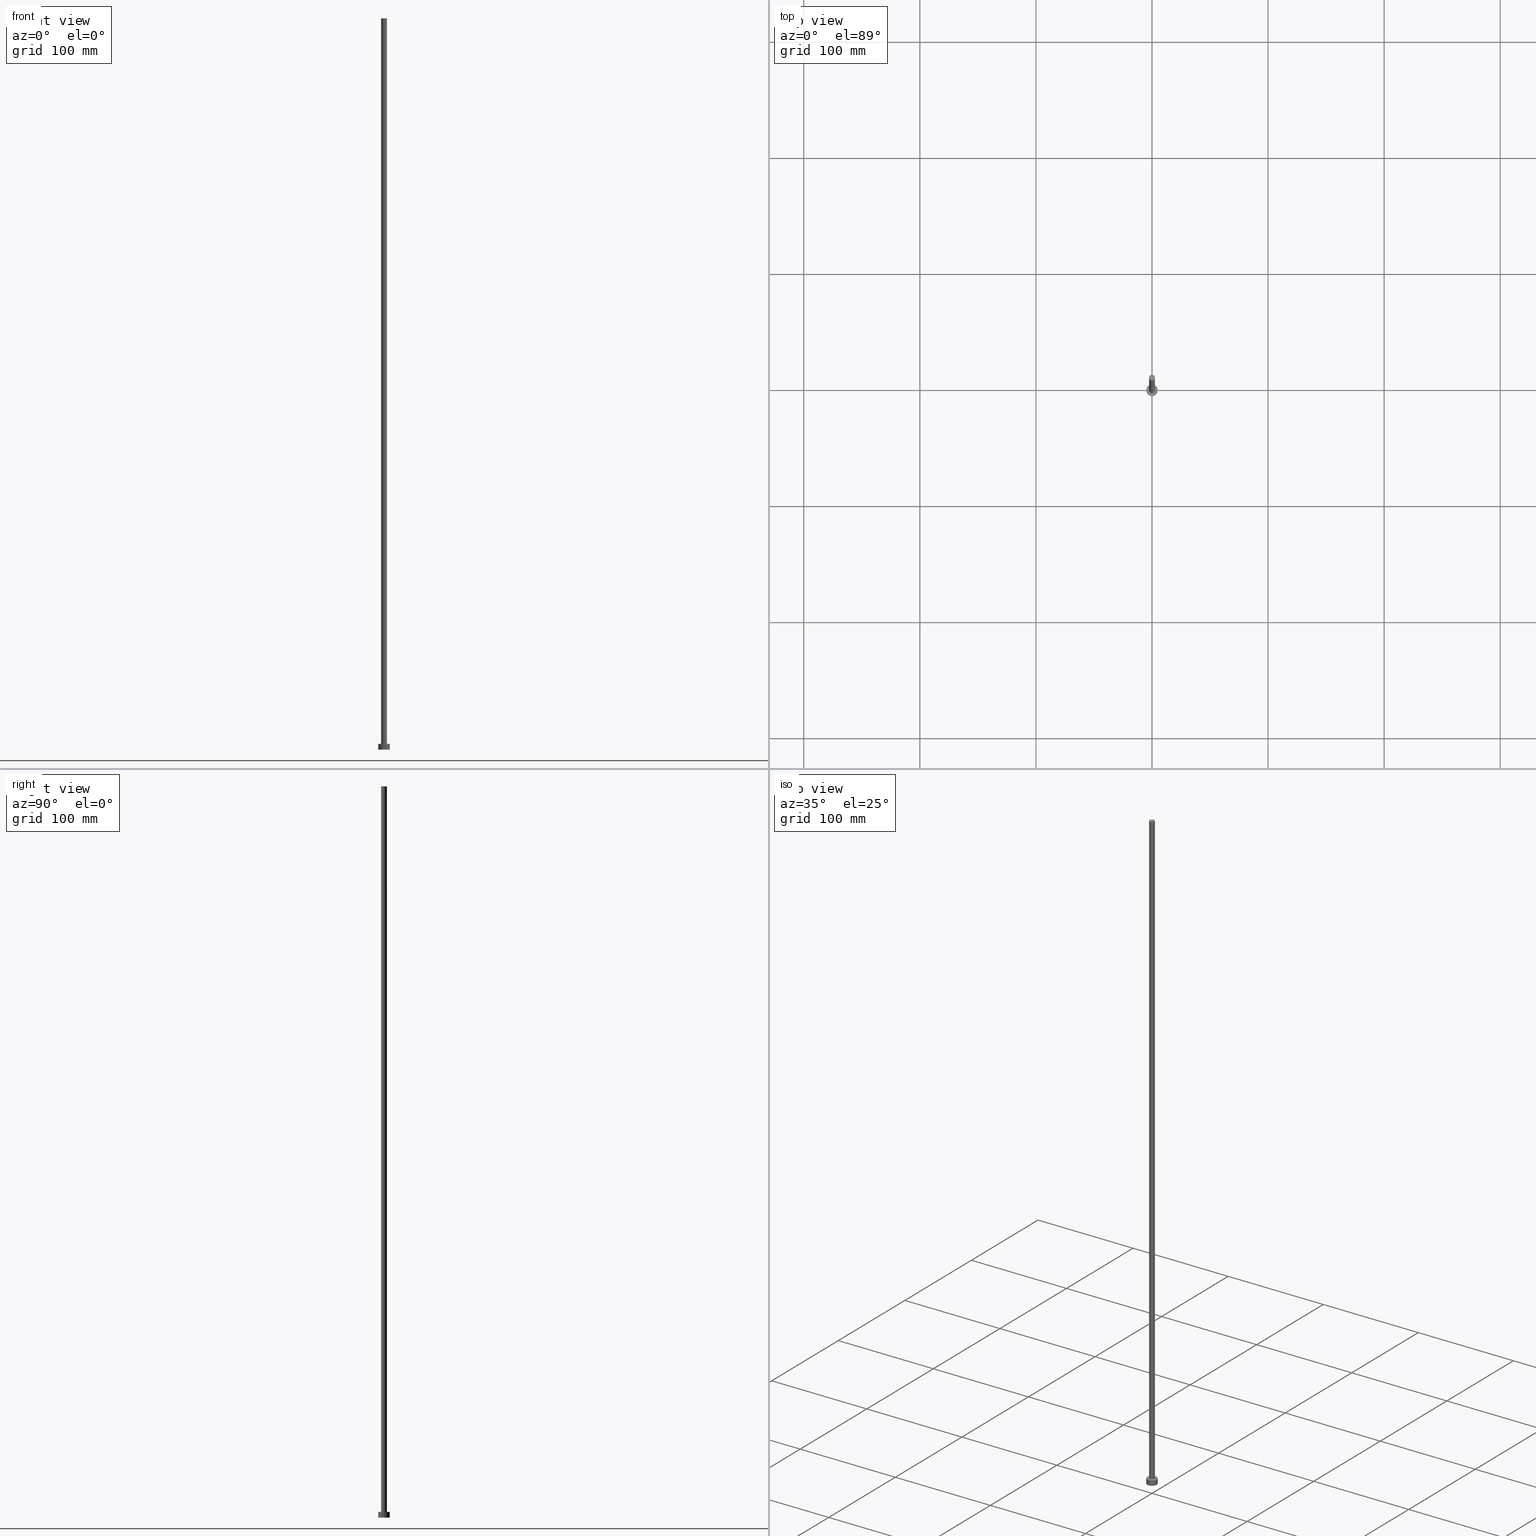
[diagram: canonical four-view strip — front | top / right | iso, engineering-drawing reading convention]
A machine part, canonical four-view strip (front | top / right | iso — engineering-drawing reading convention). The complete STEP part file that produces these views, byte-faithful:
ISO-10303-21;
HEADER;
FILE_DESCRIPTION (( 'STEP AP203' ),
    '1' );
FILE_NAME ('eec4.STEP',
    '2023-02-13T16:05:30',
    ( '' ),
    ( '' ),
    'SwSTEP 2.0',
    'SolidWorks 2019',
    '' );
FILE_SCHEMA (( 'CONFIG_CONTROL_DESIGN' ));
ENDSEC;

DATA;
#1 = ADVANCED_FACE ( 'NONE', ( #31 ), #133, .T. ) ;
#2 = PERSON_AND_ORGANIZATION ( #215, #177 ) ;
#3 = PRODUCT_DEFINITION_FORMATION_WITH_SPECIFIED_SOURCE ( 'LIBOVOLN�', '', #81, .NOT_KNOWN. ) ;
#4 = PERSON_AND_ORGANIZATION ( #215, #177 ) ;
#5 = AXIS2_PLACEMENT_3D ( 'NONE', #92, #155, #217 ) ;
#6 = CALENDAR_DATE ( 2023, 13, 2 ) ;
#7 = PERSON_AND_ORGANIZATION_ROLE ( 'creator' ) ;
#8 = VECTOR ( 'NONE', #57, 1000.000000000000000 ) ;
#9 = ORIENTED_EDGE ( 'NONE', *, *, #67, .T. ) ;
#10 = PLANE ( 'NONE',  #33 ) ;
#11 = EDGE_CURVE ( 'NONE', #164, #209, #168, .T. ) ;
#12 = APPROVAL_STATUS ( 'not_yet_approved' ) ;
#13 = CARTESIAN_POINT ( 'NONE',  ( 2.500000000000000000, 3.061616997868383141E-16, 630.0000000000000000 ) ) ;
#14 = ORIENTED_EDGE ( 'NONE', *, *, #91, .T. ) ;
#15 = CC_DESIGN_PERSON_AND_ORGANIZATION_ASSIGNMENT ( #37, #7, ( #3 ) ) ;
#16 = PERSON_AND_ORGANIZATION ( #215, #177 ) ;
#17 = CARTESIAN_POINT ( 'NONE',  ( 0.000000000000000000, 0.000000000000000000, 5.000000000000000000 ) ) ;
#18 = ORIENTED_EDGE ( 'NONE', *, *, #59, .F. ) ;
#19 = DIRECTION ( 'NONE',  ( 0.000000000000000000, 0.000000000000000000, 1.000000000000000000 ) ) ;
#20 = ORIENTED_EDGE ( 'NONE', *, *, #11, .T. ) ;
#21 = CC_DESIGN_APPROVAL ( #53, ( #175 ) ) ;
#22 = DATE_AND_TIME ( #172, #94 ) ;
#23 = DIRECTION ( 'NONE',  ( 1.000000000000000000, 0.000000000000000000, 0.000000000000000000 ) ) ;
#24 = SECURITY_CLASSIFICATION ( '', '', #30 ) ;
#25 = CARTESIAN_POINT ( 'NONE',  ( -2.500000000000000000, 0.000000000000000000, 630.0000000000000000 ) ) ;
#26 = EDGE_CURVE ( 'NONE', #85, #88, #42, .T. ) ;
#27 = CC_DESIGN_APPROVAL ( #41, ( #24 ) ) ;
#28 = CC_DESIGN_PERSON_AND_ORGANIZATION_ASSIGNMENT ( #4, #29, ( #81 ) ) ;
#29 = PERSON_AND_ORGANIZATION_ROLE ( 'design_owner' ) ;
#30 = SECURITY_CLASSIFICATION_LEVEL ( 'unclassified' ) ;
#31 = FACE_OUTER_BOUND ( 'NONE', #140, .T. ) ;
#32 = DIRECTION ( 'NONE',  ( 0.000000000000000000, 0.000000000000000000, 1.000000000000000000 ) ) ;
#33 = AXIS2_PLACEMENT_3D ( 'NONE', #17, #135, #63 ) ;
#34 = EDGE_LOOP ( 'NONE', ( #72, #127, #161, #214 ) ) ;
#35 = AXIS2_PLACEMENT_3D ( 'NONE', #174, #236, #220 ) ;
#36 = ADVANCED_FACE ( 'NONE', ( #50, #113 ), #10, .T. ) ;
#37 = PERSON_AND_ORGANIZATION ( #215, #177 ) ;
#38 = ORIENTED_EDGE ( 'NONE', *, *, #67, .F. ) ;
#39 = EDGE_LOOP ( 'NONE', ( #114, #227, #244, #226 ) ) ;
#40 =( NAMED_UNIT ( * ) SI_UNIT ( $, .STERADIAN. ) SOLID_ANGLE_UNIT ( ) );
#41 = APPROVAL ( #95, 'NEUR�EN�' ) ;
#42 = CIRCLE ( 'NONE', #180, 2.500000000000000000 ) ;
#43 = CYLINDRICAL_SURFACE ( 'NONE', #254, 2.500000000000000000 ) ;
#44 = LINE ( 'NONE', #154, #97 ) ;
#45 = PRODUCT_RELATED_PRODUCT_CATEGORY ( 'detail', '', ( #81 ) ) ;
#46 = CARTESIAN_POINT ( 'NONE',  ( 0.000000000000000000, 0.000000000000000000, 0.000000000000000000 ) ) ;
#47 = EDGE_CURVE ( 'NONE', #209, #164, #70, .T. ) ;
#48 = DIRECTION ( 'NONE',  ( 1.000000000000000000, 0.000000000000000000, 0.000000000000000000 ) ) ;
#49 = PERSON_AND_ORGANIZATION ( #215, #177 ) ;
#50 = FACE_BOUND ( 'NONE', #163, .T. ) ;
#51 = VERTEX_POINT ( 'NONE', #13 ) ;
#52 = LINE ( 'NONE', #79, #104 ) ;
#53 = APPROVAL ( #145, 'NEUR�EN�' ) ;
#54 = DIRECTION ( 'NONE',  ( -1.000000000000000000, 0.000000000000000000, 0.000000000000000000 ) ) ;
#55 = EDGE_CURVE ( 'NONE', #153, #183, #204, .T. ) ;
#56 = APPROVAL_ROLE ( '' ) ;
#57 = DIRECTION ( 'NONE',  ( -0.000000000000000000, -0.000000000000000000, -1.000000000000000000 ) ) ;
#58 = AXIS2_PLACEMENT_3D ( 'NONE', #74, #152, #23 ) ;
#59 = EDGE_CURVE ( 'NONE', #153, #209, #208, .T. ) ;
#60 = APPROVAL_DATE_TIME ( #238, #53 ) ;
#61 = APPROVAL_PERSON_ORGANIZATION ( #2, #53, #240 ) ;
#62 = ADVANCED_FACE ( 'NONE', ( #86 ), #71, .F. ) ;
#63 = DIRECTION ( 'NONE',  ( 1.000000000000000000, 0.000000000000000000, -0.000000000000000000 ) ) ;
#64 = COORDINATED_UNIVERSAL_TIME_OFFSET ( 1, 0, .AHEAD. ) ;
#65 = APPROVAL_PERSON_ORGANIZATION ( #107, #41, #56 ) ;
#66 = ORIENTED_EDGE ( 'NONE', *, *, #157, .T. ) ;
#67 = EDGE_CURVE ( 'NONE', #203, #51, #216, .T. ) ;
#68 = DIRECTION ( 'NONE',  ( 1.000000000000000000, 0.000000000000000000, 0.000000000000000000 ) ) ;
#69 = CARTESIAN_POINT ( 'NONE',  ( 5.000000000000000000, 6.123233995736766282E-16, 5.000000000000000000 ) ) ;
#70 = CIRCLE ( 'NONE', #84, 5.000000000000000000 ) ;
#71 = PLANE ( 'NONE',  #198 ) ;
#72 = ORIENTED_EDGE ( 'NONE', *, *, #197, .F. ) ;
#73 = CARTESIAN_POINT ( 'NONE',  ( -2.500000000000000000, 0.000000000000000000, 5.000000000000000000 ) ) ;
#74 = CARTESIAN_POINT ( 'NONE',  ( 0.000000000000000000, 0.000000000000000000, 5.000000000000000000 ) ) ;
#75 = CIRCLE ( 'NONE', #5, 2.500000000000000000 ) ;
#76 = CARTESIAN_POINT ( 'NONE',  ( -2.500000000000000000, 0.000000000000000000, 630.0000000000000000 ) ) ;
#77 = DIRECTION ( 'NONE',  ( -1.000000000000000000, 0.000000000000000000, 0.000000000000000000 ) ) ;
#78 = COORDINATED_UNIVERSAL_TIME_OFFSET ( 1, 0, .AHEAD. ) ;
#79 = CARTESIAN_POINT ( 'NONE',  ( 2.500000000000000000, 3.061616997868383141E-16, 630.0000000000000000 ) ) ;
#80 = COORDINATED_UNIVERSAL_TIME_OFFSET ( 1, 0, .AHEAD. ) ;
#81 = PRODUCT ( 'eec4', 'eec4', '', ( #101 ) ) ;
#82 = DATE_AND_TIME ( #6, #100 ) ;
#83 = APPROVAL_ROLE ( '' ) ;
#84 = AXIS2_PLACEMENT_3D ( 'NONE', #46, #19, #68 ) ;
#85 = VERTEX_POINT ( 'NONE', #233 ) ;
#86 = FACE_OUTER_BOUND ( 'NONE', #111, .T. ) ;
#87 = CIRCLE ( 'NONE', #221, 2.500000000000000000 ) ;
#88 = VERTEX_POINT ( 'NONE', #73 ) ;
#89 = DIRECTION ( 'NONE',  ( -0.000000000000000000, -0.000000000000000000, -1.000000000000000000 ) ) ;
#90 = ADVANCED_BREP_SHAPE_REPRESENTATION ( 'eec4', ( #124, #35 ), #199 ) ;
#91 = EDGE_CURVE ( 'NONE', #203, #88, #156, .T. ) ;
#92 = CARTESIAN_POINT ( 'NONE',  ( 0.000000000000000000, 0.000000000000000000, 5.000000000000000000 ) ) ;
#93 = DIRECTION ( 'NONE',  ( -0.000000000000000000, -0.000000000000000000, -1.000000000000000000 ) ) ;
#94 = LOCAL_TIME ( 17, 5, 30.00000000000000000, #78 ) ;
#95 = APPROVAL_STATUS ( 'not_yet_approved' ) ;
#96 = CARTESIAN_POINT ( 'NONE',  ( 5.000000000000000000, 6.123233995736766282E-16, 5.000000000000000000 ) ) ;
#97 = VECTOR ( 'NONE', #93, 1000.000000000000000 ) ;
#98 = CC_DESIGN_DATE_AND_TIME_ASSIGNMENT ( #82, #241, ( #24 ) ) ;
#99 = APPLICATION_PROTOCOL_DEFINITION ( 'international standard', 'config_control_design', 1994, #192 ) ;
#100 = LOCAL_TIME ( 17, 5, 30.00000000000000000, #178 ) ;
#101 = MECHANICAL_CONTEXT ( 'NONE', #218, 'mechanical' ) ;
#102 = PRODUCT_DEFINITION_SHAPE ( 'NONE', 'NONE',  #175 ) ;
#103 = APPROVAL ( #12, 'NEUR�EN�' ) ;
#104 = VECTOR ( 'NONE', #169, 1000.000000000000000 ) ;
#105 = CALENDAR_DATE ( 2023, 13, 2 ) ;
#106 = ADVANCED_FACE ( 'NONE', ( #141 ), #252, .T. ) ;
#107 = PERSON_AND_ORGANIZATION ( #215, #177 ) ;
#108 = CARTESIAN_POINT ( 'NONE',  ( 0.000000000000000000, 0.000000000000000000, 5.000000000000000000 ) ) ;
#109 = DIRECTION ( 'NONE',  ( 1.000000000000000000, 0.000000000000000000, -0.000000000000000000 ) ) ;
#110 = CARTESIAN_POINT ( 'NONE',  ( 0.000000000000000000, 0.000000000000000000, 630.0000000000000000 ) ) ;
#111 = EDGE_LOOP ( 'NONE', ( #179, #149 ) ) ;
#112 = PERSON_AND_ORGANIZATION ( #215, #177 ) ;
#113 = FACE_OUTER_BOUND ( 'NONE', #162, .T. ) ;
#114 = ORIENTED_EDGE ( 'NONE', *, *, #55, .F. ) ;
#115 = EDGE_LOOP ( 'NONE', ( #18, #181, #185, #20 ) ) ;
#116 = DIRECTION ( 'NONE',  ( -0.000000000000000000, -0.000000000000000000, -1.000000000000000000 ) ) ;
#117 = AXIS2_PLACEMENT_3D ( 'NONE', #108, #225, #248 ) ;
#118 = CYLINDRICAL_SURFACE ( 'NONE', #147, 2.500000000000000000 ) ;
#119 = FACE_OUTER_BOUND ( 'NONE', #115, .T. ) ;
#120 = CC_DESIGN_PERSON_AND_ORGANIZATION_ASSIGNMENT ( #112, #184, ( #3 ) ) ;
#121 = AXIS2_PLACEMENT_3D ( 'NONE', #160, #243, #251 ) ;
#122 = EDGE_CURVE ( 'NONE', #88, #85, #75, .T. ) ;
#123 = CC_DESIGN_APPROVAL ( #103, ( #3 ) ) ;
#124 = MANIFOLD_SOLID_BREP ( 'P�idat vysunut�m3', #228 ) ;
#125 = EDGE_CURVE ( 'NONE', #51, #85, #52, .T. ) ;
#126 = PERSON_AND_ORGANIZATION_ROLE ( 'creator' ) ;
#127 = ORIENTED_EDGE ( 'NONE', *, *, #125, .T. ) ;
#128 = DIRECTION ( 'NONE',  ( 0.000000000000000000, 0.000000000000000000, 1.000000000000000000 ) ) ;
#129 = CALENDAR_DATE ( 2023, 13, 2 ) ;
#130 = DIRECTION ( 'NONE',  ( 1.000000000000000000, 0.000000000000000000, 0.000000000000000000 ) ) ;
#131 = DESIGN_CONTEXT ( 'detailed design', #192, 'design' ) ;
#132 = DATE_AND_TIME ( #105, #194 ) ;
#133 = PLANE ( 'NONE',  #176 ) ;
#134 = ORIENTED_EDGE ( 'NONE', *, *, #125, .F. ) ;
#135 = DIRECTION ( 'NONE',  ( 0.000000000000000000, 0.000000000000000000, 1.000000000000000000 ) ) ;
#136 = DIRECTION ( 'NONE',  ( -0.000000000000000000, -0.000000000000000000, -1.000000000000000000 ) ) ;
#137 = CARTESIAN_POINT ( 'NONE',  ( 0.000000000000000000, 0.000000000000000000, 630.0000000000000000 ) ) ;
#138 = LOCAL_TIME ( 17, 5, 30.00000000000000000, #64 ) ;
#139 = CYLINDRICAL_SURFACE ( 'NONE', #235, 5.000000000000000000 ) ;
#140 = EDGE_LOOP ( 'NONE', ( #9, #148 ) ) ;
#141 = FACE_OUTER_BOUND ( 'NONE', #39, .T. ) ;
#142 = ORIENTED_EDGE ( 'NONE', *, *, #55, .T. ) ;
#143 =( NAMED_UNIT ( * ) PLANE_ANGLE_UNIT ( ) SI_UNIT ( $, .RADIAN. ) );
#144 = AXIS2_PLACEMENT_3D ( 'NONE', #219, #89, #234 ) ;
#145 = APPROVAL_STATUS ( 'not_yet_approved' ) ;
#146 = DIRECTION ( 'NONE',  ( 0.000000000000000000, 0.000000000000000000, 1.000000000000000000 ) ) ;
#147 = AXIS2_PLACEMENT_3D ( 'NONE', #167, #136, #193 ) ;
#148 = ORIENTED_EDGE ( 'NONE', *, *, #197, .T. ) ;
#149 = ORIENTED_EDGE ( 'NONE', *, *, #47, .F. ) ;
#150 = UNCERTAINTY_MEASURE_WITH_UNIT (LENGTH_MEASURE( 1.000000000000000082E-05 ), #210, 'distance_accuracy_value', 'NONE');
#151 = DIRECTION ( 'NONE',  ( 1.000000000000000000, 0.000000000000000000, -0.000000000000000000 ) ) ;
#152 = DIRECTION ( 'NONE',  ( 0.000000000000000000, 0.000000000000000000, 1.000000000000000000 ) ) ;
#153 = VERTEX_POINT ( 'NONE', #96 ) ;
#154 = CARTESIAN_POINT ( 'NONE',  ( -5.000000000000000000, 0.000000000000000000, 5.000000000000000000 ) ) ;
#155 = DIRECTION ( 'NONE',  ( 0.000000000000000000, 0.000000000000000000, 1.000000000000000000 ) ) ;
#156 = LINE ( 'NONE', #76, #8 ) ;
#157 = EDGE_CURVE ( 'NONE', #183, #153, #165, .T. ) ;
#158 = CC_DESIGN_DATE_AND_TIME_ASSIGNMENT ( #224, #182, ( #175 ) ) ;
#159 = DIRECTION ( 'NONE',  ( 0.000000000000000000, 0.000000000000000000, 1.000000000000000000 ) ) ;
#160 = CARTESIAN_POINT ( 'NONE',  ( 0.000000000000000000, 0.000000000000000000, 630.0000000000000000 ) ) ;
#161 = ORIENTED_EDGE ( 'NONE', *, *, #26, .T. ) ;
#162 = EDGE_LOOP ( 'NONE', ( #66, #142 ) ) ;
#163 = EDGE_LOOP ( 'NONE', ( #249, #231 ) ) ;
#164 = VERTEX_POINT ( 'NONE', #255 ) ;
#165 = CIRCLE ( 'NONE', #58, 5.000000000000000000 ) ;
#166 = ADVANCED_FACE ( 'NONE', ( #195 ), #43, .T. ) ;
#167 = CARTESIAN_POINT ( 'NONE',  ( 0.000000000000000000, 0.000000000000000000, 630.0000000000000000 ) ) ;
#168 = CIRCLE ( 'NONE', #186, 5.000000000000000000 ) ;
#169 = DIRECTION ( 'NONE',  ( -0.000000000000000000, -0.000000000000000000, -1.000000000000000000 ) ) ;
#170 = DIRECTION ( 'NONE',  ( 1.000000000000000000, 0.000000000000000000, 0.000000000000000000 ) ) ;
#171 = CC_DESIGN_PERSON_AND_ORGANIZATION_ASSIGNMENT ( #222, #126, ( #175 ) ) ;
#172 = CALENDAR_DATE ( 2023, 13, 2 ) ;
#173 = CARTESIAN_POINT ( 'NONE',  ( 5.000000000000000000, 6.123233995736766282E-16, 0.000000000000000000 ) ) ;
#174 = CARTESIAN_POINT ( 'NONE',  ( 0.000000000000000000, 0.000000000000000000, 0.000000000000000000 ) ) ;
#175 = PRODUCT_DEFINITION ( 'NEZN�M�', '', #3, #131 ) ;
#176 = AXIS2_PLACEMENT_3D ( 'NONE', #110, #32, #109 ) ;
#177 = ORGANIZATION ( 'NEUR�EN�', 'NEUR�EN�', '' ) ;
#178 = COORDINATED_UNIVERSAL_TIME_OFFSET ( 1, 0, .AHEAD. ) ;
#179 = ORIENTED_EDGE ( 'NONE', *, *, #11, .F. ) ;
#180 = AXIS2_PLACEMENT_3D ( 'NONE', #229, #159, #130 ) ;
#181 = ORIENTED_EDGE ( 'NONE', *, *, #157, .F. ) ;
#182 = DATE_TIME_ROLE ( 'creation_date' ) ;
#183 = VERTEX_POINT ( 'NONE', #230 ) ;
#184 = PERSON_AND_ORGANIZATION_ROLE ( 'design_supplier' ) ;
#185 = ORIENTED_EDGE ( 'NONE', *, *, #223, .T. ) ;
#186 = AXIS2_PLACEMENT_3D ( 'NONE', #207, #128, #48 ) ;
#187 = SHAPE_DEFINITION_REPRESENTATION ( #102, #90 ) ;
#188 = DIRECTION ( 'NONE',  ( 0.000000000000000000, 0.000000000000000000, 1.000000000000000000 ) ) ;
#189 = APPLICATION_PROTOCOL_DEFINITION ( 'international standard', 'config_control_design', 1994, #218 ) ;
#190 = APPROVAL_DATE_TIME ( #22, #41 ) ;
#191 = CARTESIAN_POINT ( 'NONE',  ( 0.000000000000000000, 0.000000000000000000, 630.0000000000000000 ) ) ;
#192 = APPLICATION_CONTEXT ( 'configuration controlled 3d designs of mechanical parts and assemblies' ) ;
#193 = DIRECTION ( 'NONE',  ( -1.000000000000000000, 0.000000000000000000, 0.000000000000000000 ) ) ;
#194 = LOCAL_TIME ( 17, 5, 30.00000000000000000, #247 ) ;
#195 = FACE_OUTER_BOUND ( 'NONE', #34, .T. ) ;
#196 = CC_DESIGN_PERSON_AND_ORGANIZATION_ASSIGNMENT ( #16, #250, ( #24 ) ) ;
#197 = EDGE_CURVE ( 'NONE', #51, #203, #87, .T. ) ;
#198 = AXIS2_PLACEMENT_3D ( 'NONE', #201, #146, #151 ) ;
#199 =( GEOMETRIC_REPRESENTATION_CONTEXT ( 3 ) GLOBAL_UNCERTAINTY_ASSIGNED_CONTEXT ( ( #150 ) ) GLOBAL_UNIT_ASSIGNED_CONTEXT ( ( #210, #143, #40 ) ) REPRESENTATION_CONTEXT ( 'NONE', 'WORKASPACE' ) );
#200 = ADVANCED_FACE ( 'NONE', ( #119 ), #139, .T. ) ;
#201 = CARTESIAN_POINT ( 'NONE',  ( 0.000000000000000000, 0.000000000000000000, 0.000000000000000000 ) ) ;
#202 = ADVANCED_FACE ( 'NONE', ( #212 ), #118, .T. ) ;
#203 = VERTEX_POINT ( 'NONE', #25 ) ;
#204 = CIRCLE ( 'NONE', #117, 5.000000000000000000 ) ;
#205 = LOCAL_TIME ( 17, 5, 30.00000000000000000, #80 ) ;
#206 = APPROVAL_DATE_TIME ( #132, #103 ) ;
#207 = CARTESIAN_POINT ( 'NONE',  ( 0.000000000000000000, 0.000000000000000000, 0.000000000000000000 ) ) ;
#208 = LINE ( 'NONE', #69, #253 ) ;
#209 = VERTEX_POINT ( 'NONE', #173 ) ;
#210 =( LENGTH_UNIT ( ) NAMED_UNIT ( * ) SI_UNIT ( .MILLI., .METRE. ) );
#211 = APPROVAL_PERSON_ORGANIZATION ( #49, #103, #83 ) ;
#212 = FACE_OUTER_BOUND ( 'NONE', #246, .T. ) ;
#213 = CARTESIAN_POINT ( 'NONE',  ( 0.000000000000000000, 0.000000000000000000, 5.000000000000000000 ) ) ;
#214 = ORIENTED_EDGE ( 'NONE', *, *, #91, .F. ) ;
#215 = PERSON ( 'NEUR�EN�', 'NEUR�EN�', 'NEUR�EN�', ('NEUR�EN�'), ('NEUR�EN�'), ('NEUR�EN�') ) ;
#216 = CIRCLE ( 'NONE', #121, 2.500000000000000000 ) ;
#217 = DIRECTION ( 'NONE',  ( 1.000000000000000000, 0.000000000000000000, 0.000000000000000000 ) ) ;
#218 = APPLICATION_CONTEXT ( 'configuration controlled 3d designs of mechanical parts and assemblies' ) ;
#219 = CARTESIAN_POINT ( 'NONE',  ( 0.000000000000000000, 0.000000000000000000, 5.000000000000000000 ) ) ;
#220 = DIRECTION ( 'NONE',  ( 1.000000000000000000, 0.000000000000000000, 0.000000000000000000 ) ) ;
#221 = AXIS2_PLACEMENT_3D ( 'NONE', #191, #188, #170 ) ;
#222 = PERSON_AND_ORGANIZATION ( #215, #177 ) ;
#223 = EDGE_CURVE ( 'NONE', #183, #164, #44, .T. ) ;
#224 = DATE_AND_TIME ( #129, #138 ) ;
#225 = DIRECTION ( 'NONE',  ( 0.000000000000000000, 0.000000000000000000, 1.000000000000000000 ) ) ;
#226 = ORIENTED_EDGE ( 'NONE', *, *, #223, .F. ) ;
#227 = ORIENTED_EDGE ( 'NONE', *, *, #59, .T. ) ;
#228 = CLOSED_SHELL ( 'NONE', ( #166, #106, #200, #36, #62, #202, #1 ) ) ;
#229 = CARTESIAN_POINT ( 'NONE',  ( 0.000000000000000000, 0.000000000000000000, 5.000000000000000000 ) ) ;
#230 = CARTESIAN_POINT ( 'NONE',  ( -5.000000000000000000, 0.000000000000000000, 5.000000000000000000 ) ) ;
#231 = ORIENTED_EDGE ( 'NONE', *, *, #26, .F. ) ;
#232 = DIRECTION ( 'NONE',  ( -0.000000000000000000, -0.000000000000000000, -1.000000000000000000 ) ) ;
#233 = CARTESIAN_POINT ( 'NONE',  ( 2.500000000000000000, 3.061616997868383141E-16, 5.000000000000000000 ) ) ;
#234 = DIRECTION ( 'NONE',  ( -1.000000000000000000, 0.000000000000000000, 0.000000000000000000 ) ) ;
#235 = AXIS2_PLACEMENT_3D ( 'NONE', #213, #116, #77 ) ;
#236 = DIRECTION ( 'NONE',  ( 0.000000000000000000, 0.000000000000000000, 1.000000000000000000 ) ) ;
#237 = CALENDAR_DATE ( 2023, 13, 2 ) ;
#238 = DATE_AND_TIME ( #237, #205 ) ;
#239 = CC_DESIGN_SECURITY_CLASSIFICATION ( #24, ( #3 ) ) ;
#240 = APPROVAL_ROLE ( '' ) ;
#241 = DATE_TIME_ROLE ( 'classification_date' ) ;
#242 = DIRECTION ( 'NONE',  ( -0.000000000000000000, -0.000000000000000000, -1.000000000000000000 ) ) ;
#243 = DIRECTION ( 'NONE',  ( 0.000000000000000000, 0.000000000000000000, 1.000000000000000000 ) ) ;
#244 = ORIENTED_EDGE ( 'NONE', *, *, #47, .T. ) ;
#245 = ORIENTED_EDGE ( 'NONE', *, *, #122, .T. ) ;
#246 = EDGE_LOOP ( 'NONE', ( #134, #38, #14, #245 ) ) ;
#247 = COORDINATED_UNIVERSAL_TIME_OFFSET ( 1, 0, .AHEAD. ) ;
#248 = DIRECTION ( 'NONE',  ( 1.000000000000000000, 0.000000000000000000, 0.000000000000000000 ) ) ;
#249 = ORIENTED_EDGE ( 'NONE', *, *, #122, .F. ) ;
#250 = PERSON_AND_ORGANIZATION_ROLE ( 'classification_officer' ) ;
#251 = DIRECTION ( 'NONE',  ( 1.000000000000000000, 0.000000000000000000, 0.000000000000000000 ) ) ;
#252 = CYLINDRICAL_SURFACE ( 'NONE', #144, 5.000000000000000000 ) ;
#253 = VECTOR ( 'NONE', #242, 1000.000000000000000 ) ;
#254 = AXIS2_PLACEMENT_3D ( 'NONE', #137, #232, #54 ) ;
#255 = CARTESIAN_POINT ( 'NONE',  ( -5.000000000000000000, 0.000000000000000000, 0.000000000000000000 ) ) ;
ENDSEC;
END-ISO-10303-21;
